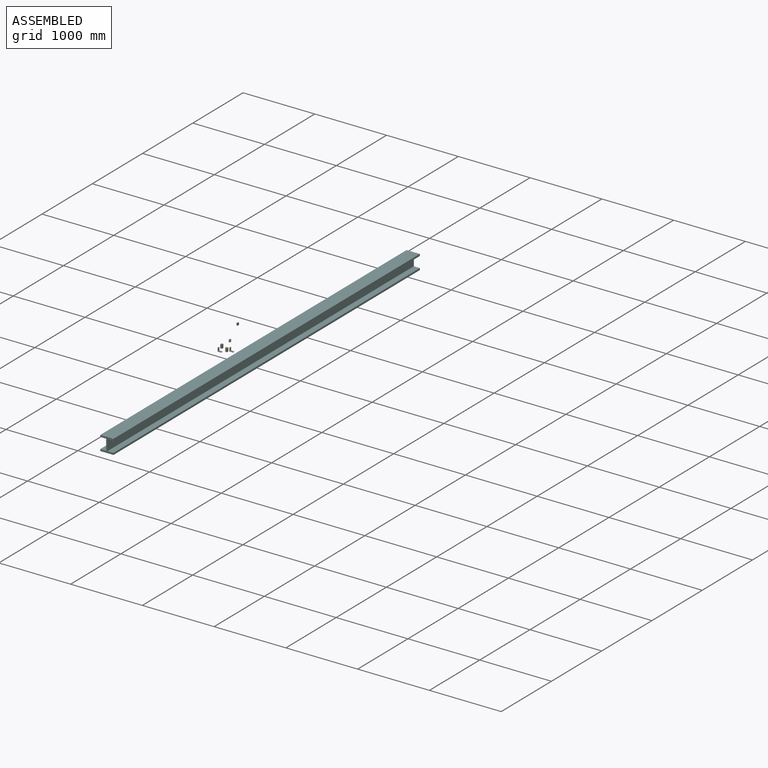
[diagram: assembled view]
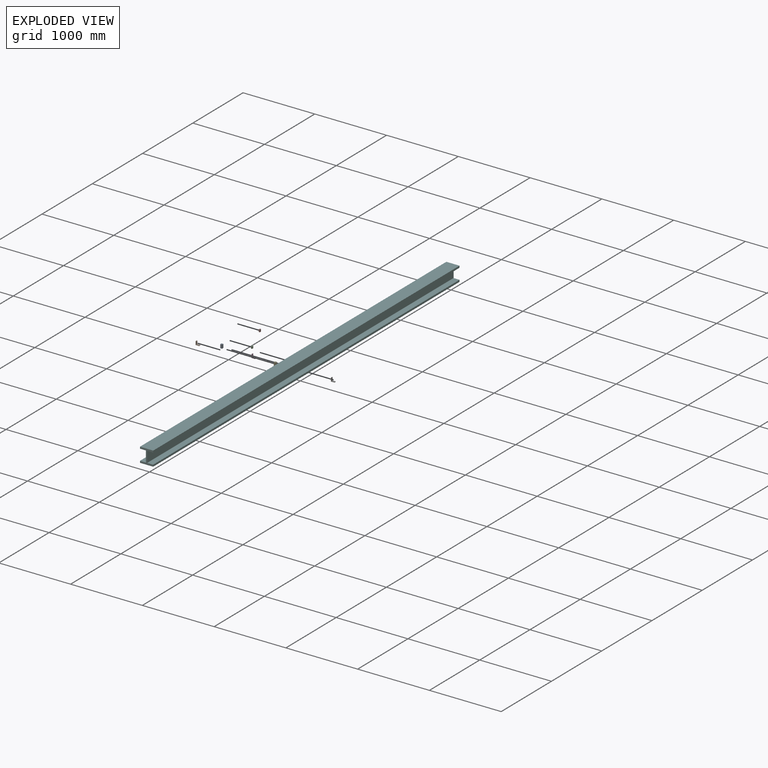
[diagram: exploded view]
GUIDED TOUR — MATED ASSEMBLY (Onshape document 58aba0348105ed0f8394dce6, AutoMate assembly 58aba0348105ed0f8394dce6_0b716180c5e61bfcd0391513_04956d65c0c06dcf2166eeb8_default)

This assembly has 8 components, labeled P0..P7 below (a component is one placed occurrence of a part; the same part can appear more than once), held together by 0 mates. A mate is a constraint between two components; its type names the relative motion it leaves free:
Axis/direction vectors are unit vectors and 'through' points are millimeter coordinates, both in the assembly's world frame.

MATES

ASSEMBLY ORDER
  1. P6 — the base component [order verified]
  2. P3 [order verified]
  3. P7 [order verified]
  4. P4 [order verified]
  5. P0 [order verified]
  6. P1 [order verified]
  7. P5 [order verified]
  8. P2 [order verified]
Order-tag legend:
  [order verified] — this step's position reverses a verified removal order: the component was checked to insert without passing through the ones already placed.

Of the 8 components, 8 carry the full construction recipe — the FeatureScript program that regenerates the part's solid from scratch; the rest are supplied as boundary geometry only.
Each toured component is shown spotlighted twice — in the assembled view, then in the exploded view, where a leader line traces a displaced component back to its assembled socket (saturated green if recipe-attached, orange if geometry-only; every other component desaturated gray) — followed by its recipe or geometry summary and the mates that hold it.
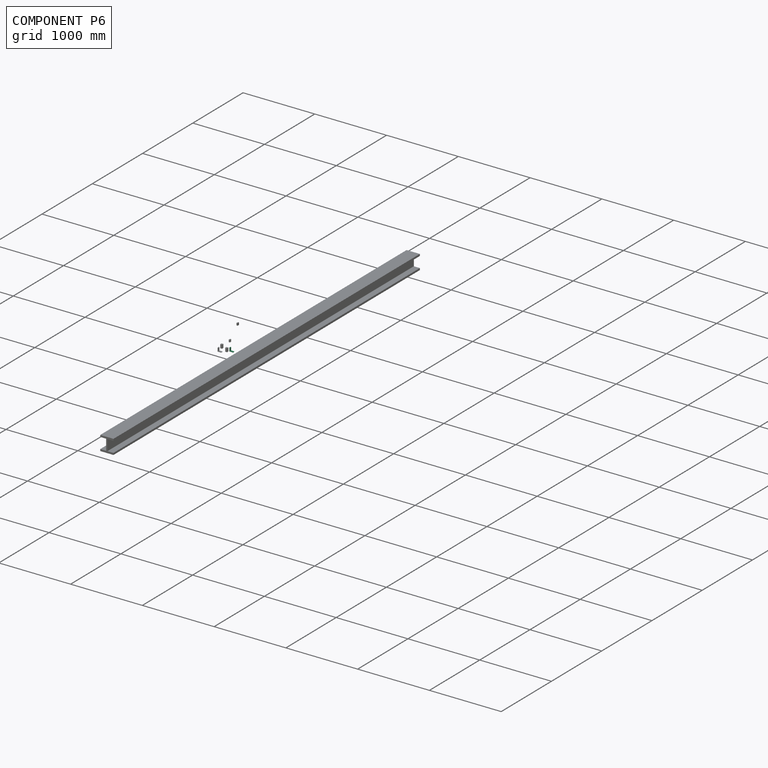
[diagram: component P6 — assembled]
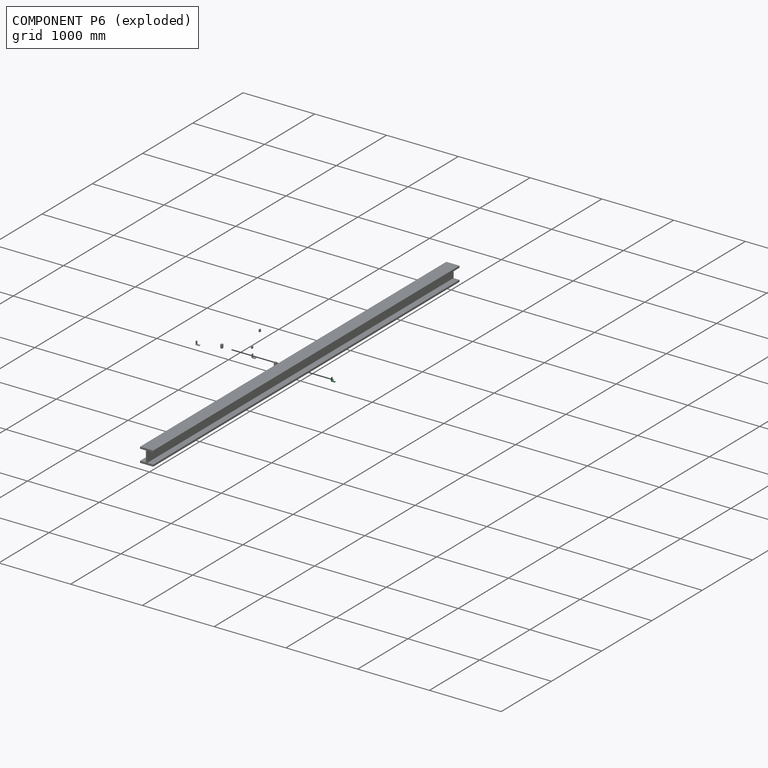
[diagram: component P6 — exploded]
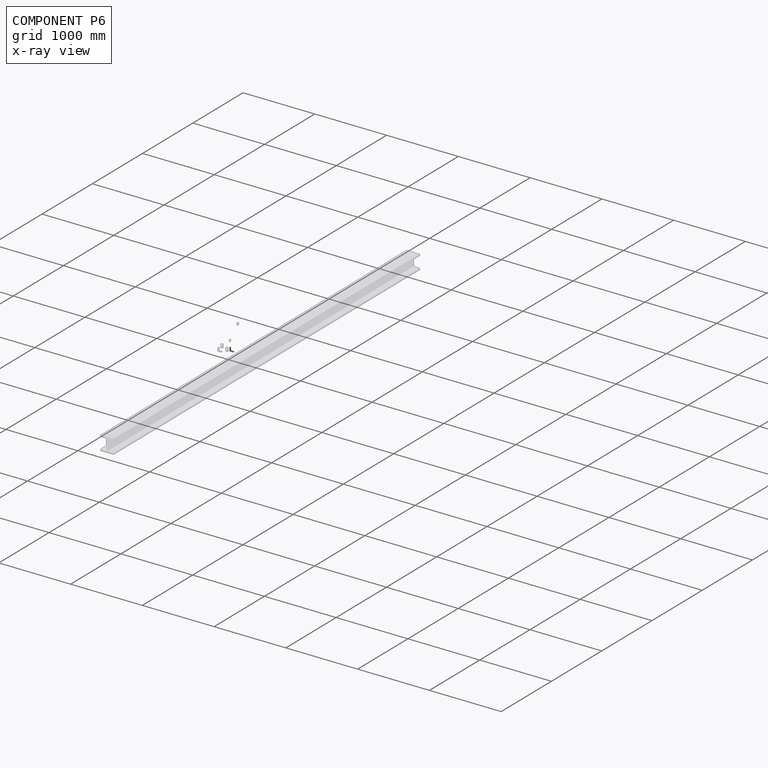
[diagram: component P6 — x-ray view]
COMPONENT P6 — same part as P1 (CADFS 00549155); its construction recipe is shown at P1.
Held by: no mates (free).
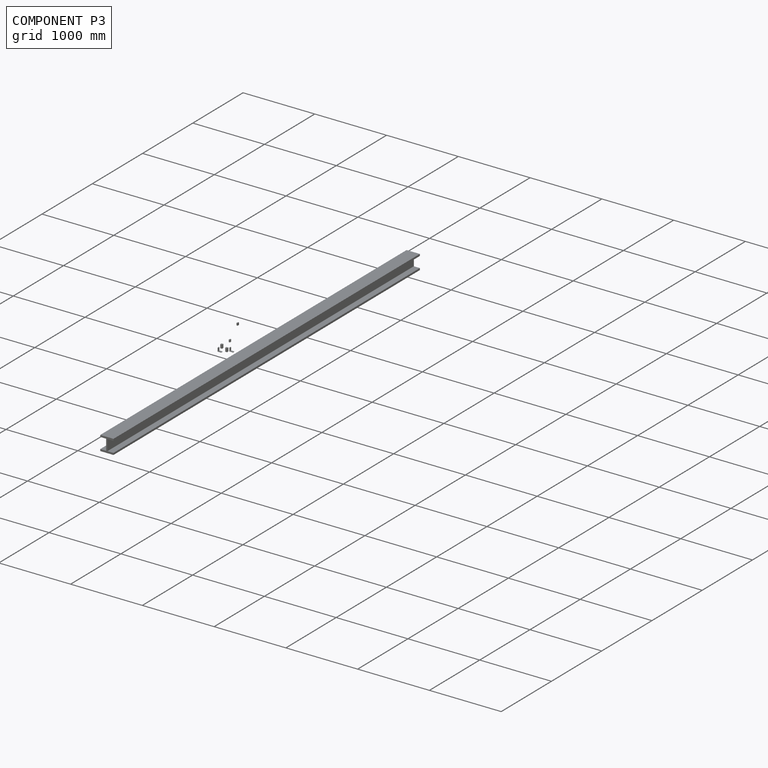
[diagram: component P3 — assembled]
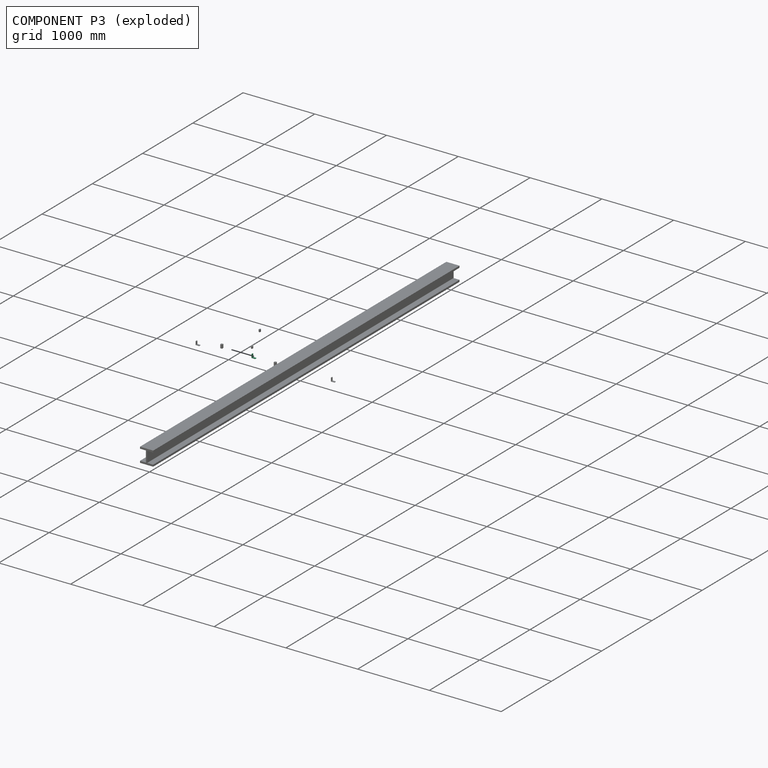
[diagram: component P3 — exploded]
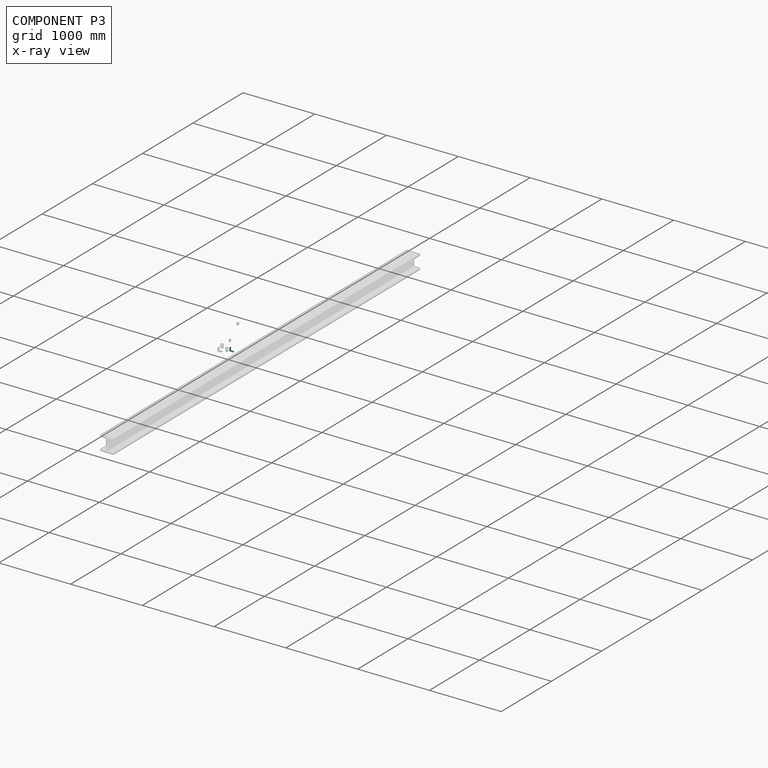
[diagram: component P3 — x-ray view]
COMPONENT P3 — same part as P1 (CADFS 00549155); its construction recipe is shown at P1.
Held by: no mates (free).
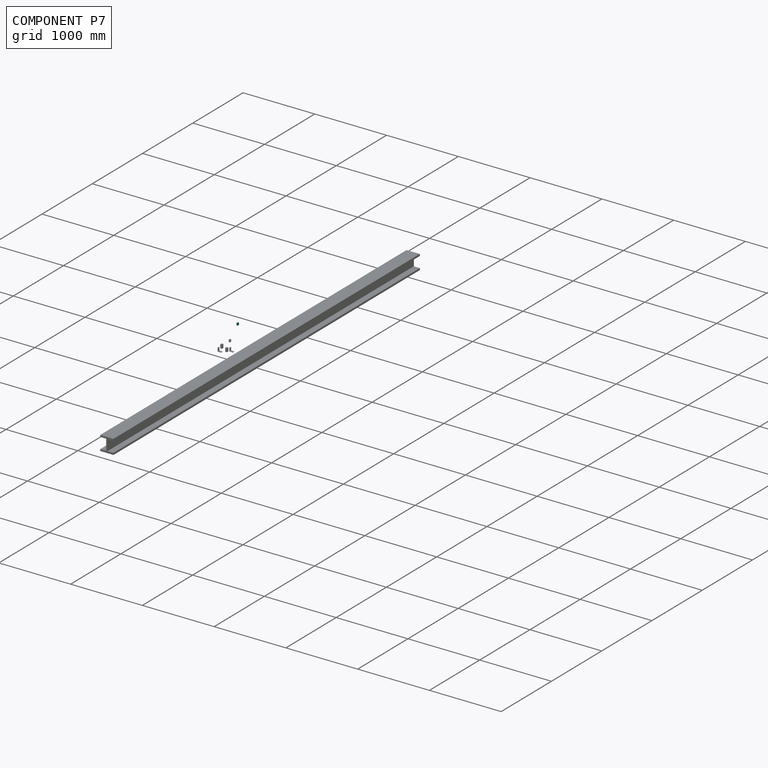
[diagram: component P7 — assembled]
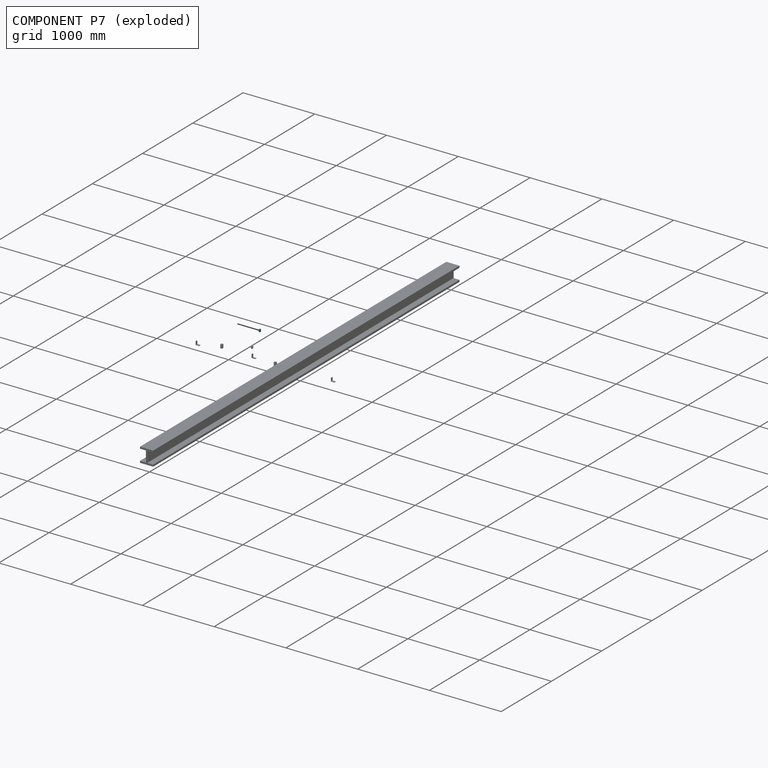
[diagram: component P7 — exploded]
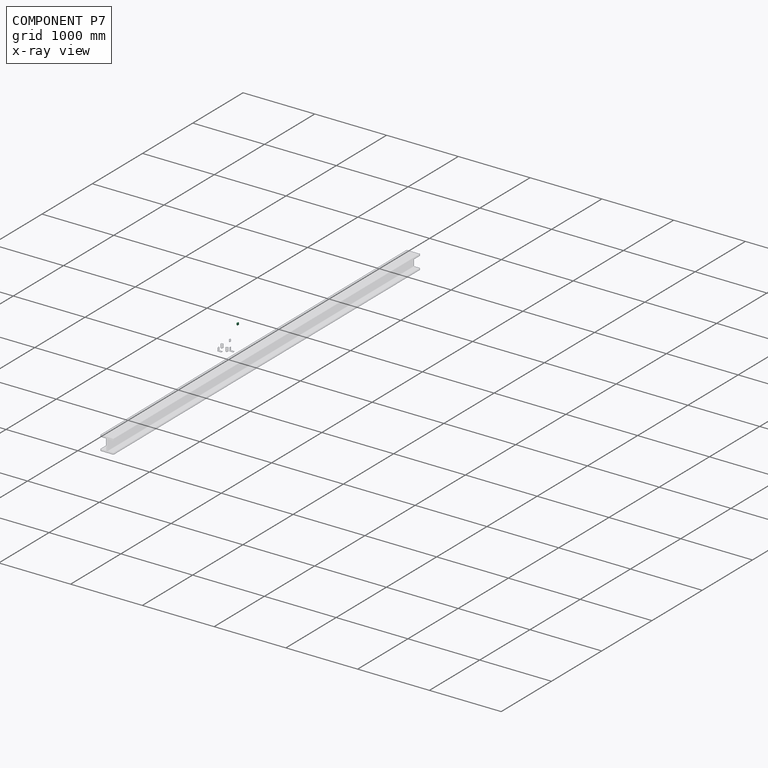
[diagram: component P7 — x-ray view]
COMPONENT P7 — same part as P2 (CADFS 00549150); its construction recipe is shown at P2.
Held by: no mates (free).
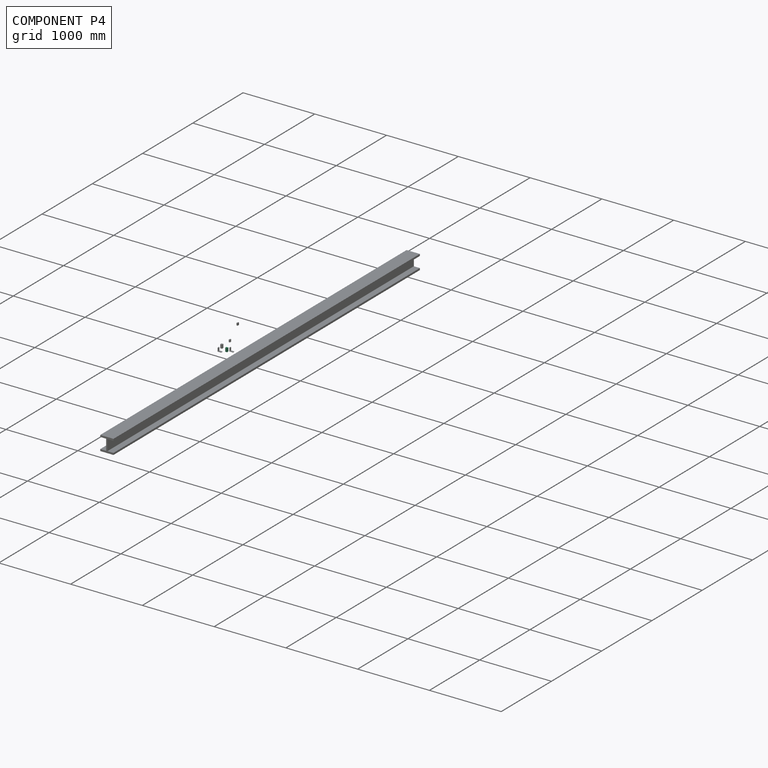
[diagram: component P4 — assembled]
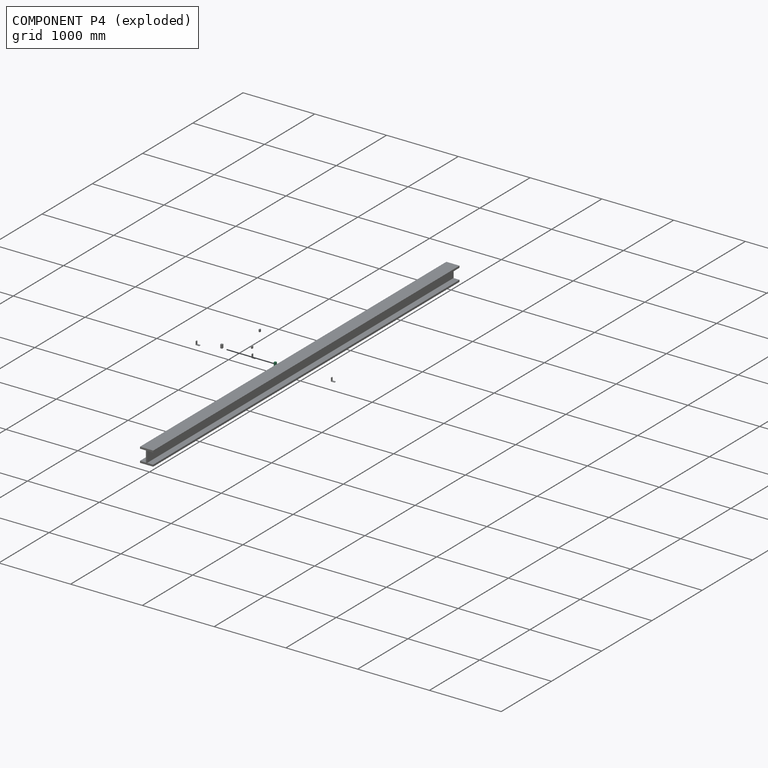
[diagram: component P4 — exploded]
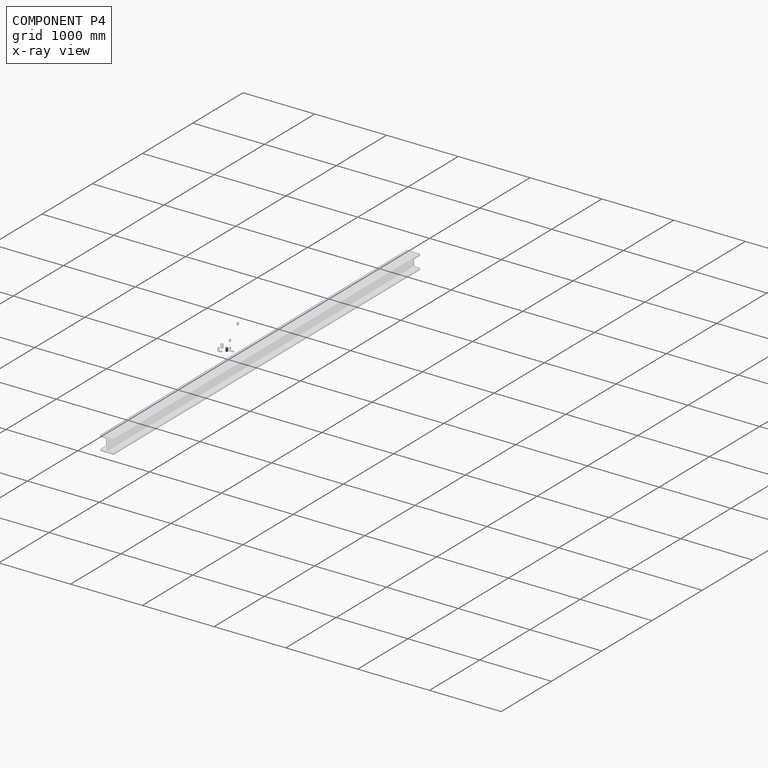
[diagram: component P4 — x-ray view]
COMPONENT P4 — same part as P0 (CADFS 00549154); its construction recipe is shown at P0.
Held by: no mates (free).
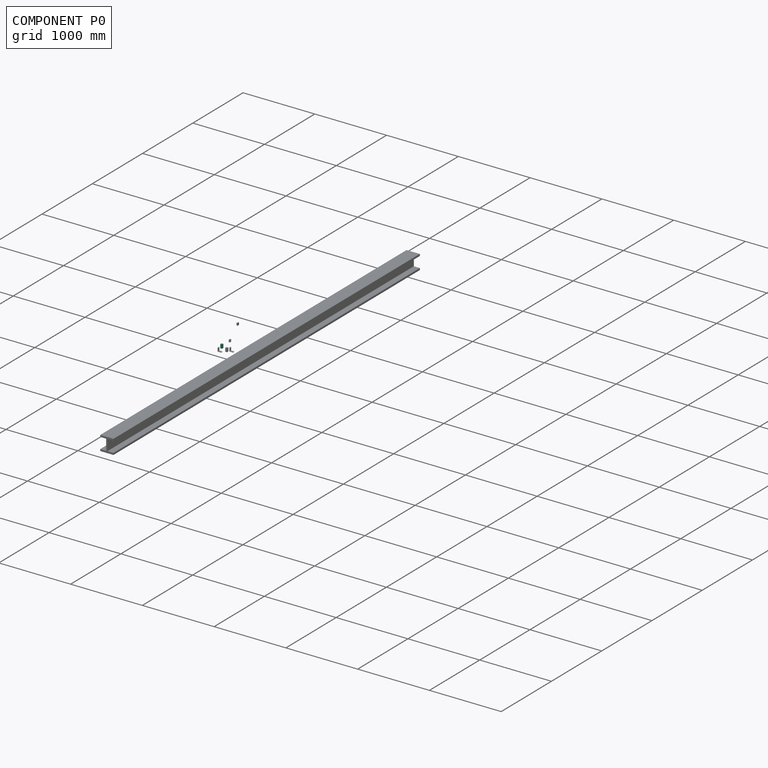
[diagram: component P0 — assembled]
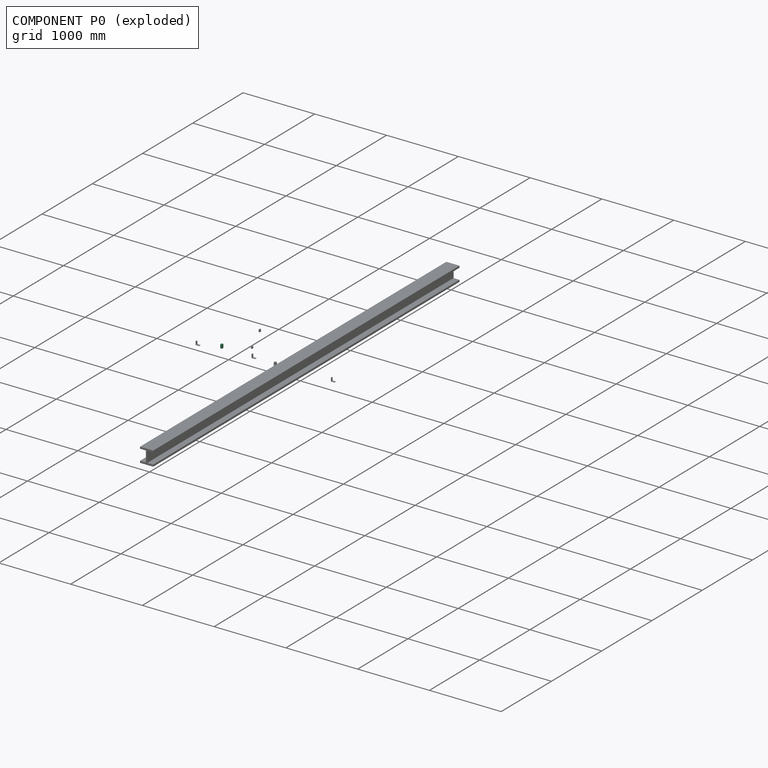
[diagram: component P0 — exploded]
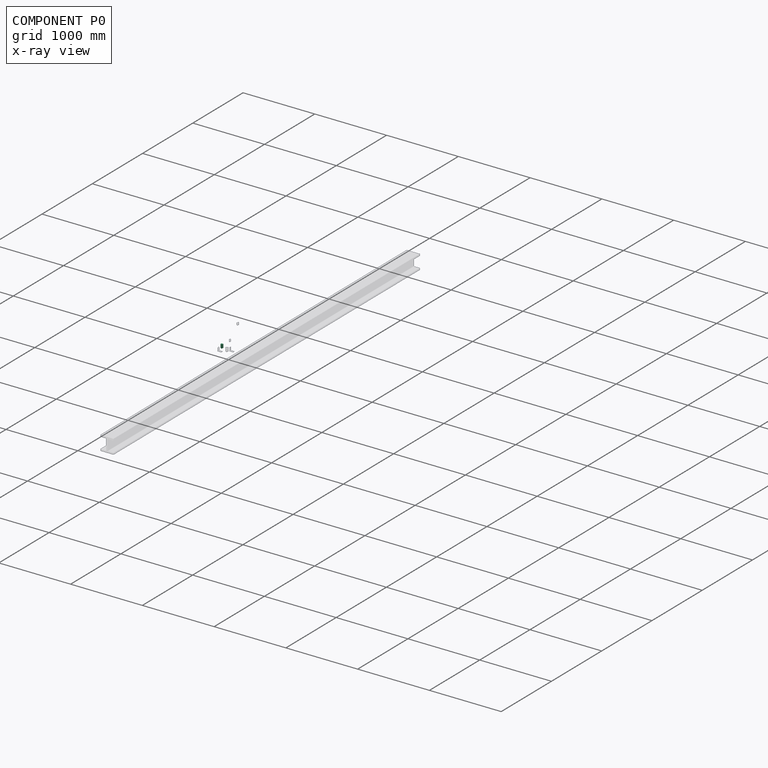
[diagram: component P0 — x-ray view]
COMPONENT P0 — recipe-attached (CADFS 00549154, mesh-verified: the recipe's output STEP matches this component's geometry to below the mesh-comparison resolution (tessellation chordal tolerance ~0.0933 mm)).
Held by: no mates (free).
Construction recipe (FeatureScript — the CAD program that rebuilds this solid; sketch coordinates are in the units given by the * unit suffixes, e.g. mm):

FeatureScript 1511;
import(path : "onshape/std/geometry.fs", version : "1511.0");
import(path : "onshape/std/common.fs", version : "1511.0");
const mm = millimeter;
const VERTEX = EntityType.VERTEX;
const EDGE = EntityType.EDGE;
const FACE = EntityType.FACE;
const BODY = EntityType.BODY;
function v(x, y){return vector(x, y);}
function OD(order){return orderDisambiguation(order);}
function OSD(set){return originalSetDisambiguation(set);}
function TD(topology){return topologyDisambiguation(topology);}
function TDD(query){return trueDependencyDisambiguation(query);}
function sQuery(a, b, c) {return sketchEntityQuery(a, b, c);}

annotation { "Feature Type Name" : "Feature", "Feature Type Description" : "" }
export const myFeature = defineFeature(function(context is Context, id is Id, definition is map)
    precondition{}
    {
        {
            var Q0;
            Q0=qCreatedBy(makeId("Front.planeOp"),FACE);
            var sketch = newSketch(context, id + "F0", { "sketchPlane" : qUnion([Q0])});
            skLineSegment(sketch, "E0", {"start": v(0, 0) * mm, "end": v(0, 50.8) * mm});
            skLineSegment(sketch, "E1", {"start": v(0, 50.8) * mm, "end": v(25.4, 50.8) * mm});
            skLineSegment(sketch, "E2", {"start": v(25.4, 50.8) * mm, "end": v(25.4, 0) * mm});
            skLineSegment(sketch, "E3", {"start": v(25.4, 0) * mm, "end": v(0, 0) * mm});
            skSolve(sketch);
        }
        {
            var Q0;
            Q0=makeQuery(id+"F0.imprint","IMPRINT",FACE,{"disambiguationData":[TD([[makeQuery(id+"F0.imprint","IMPRINT",EDGE,{"derivedFrom":sQuery(id+"F0.wireOp",EDGE,"E0")}),-1.0]])]});
            extrude(context, id + "F1", {"entities" : qUnion([Q0]), "depth" : 25.4 * mm});
        }
    });
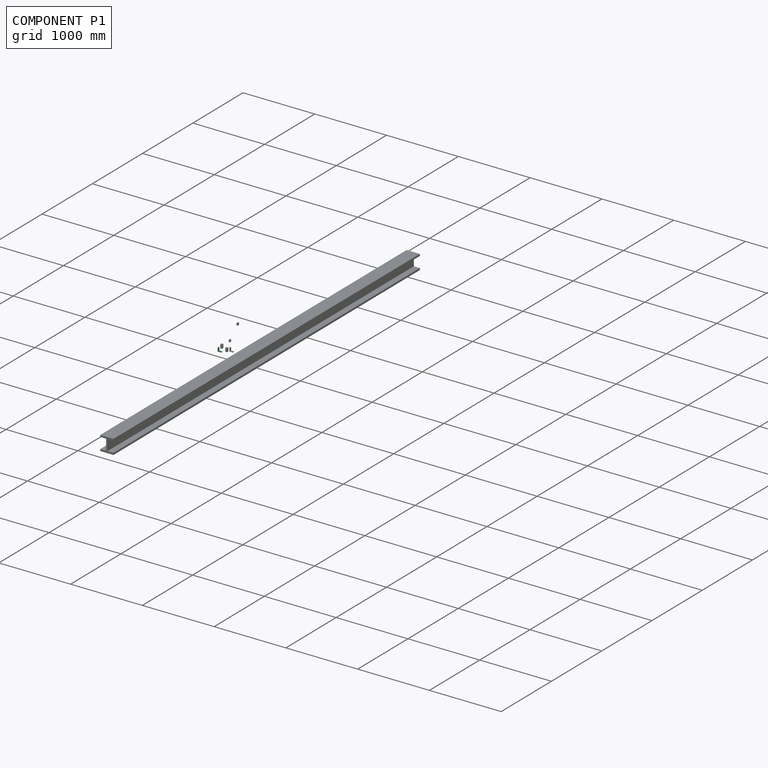
[diagram: component P1 — assembled]
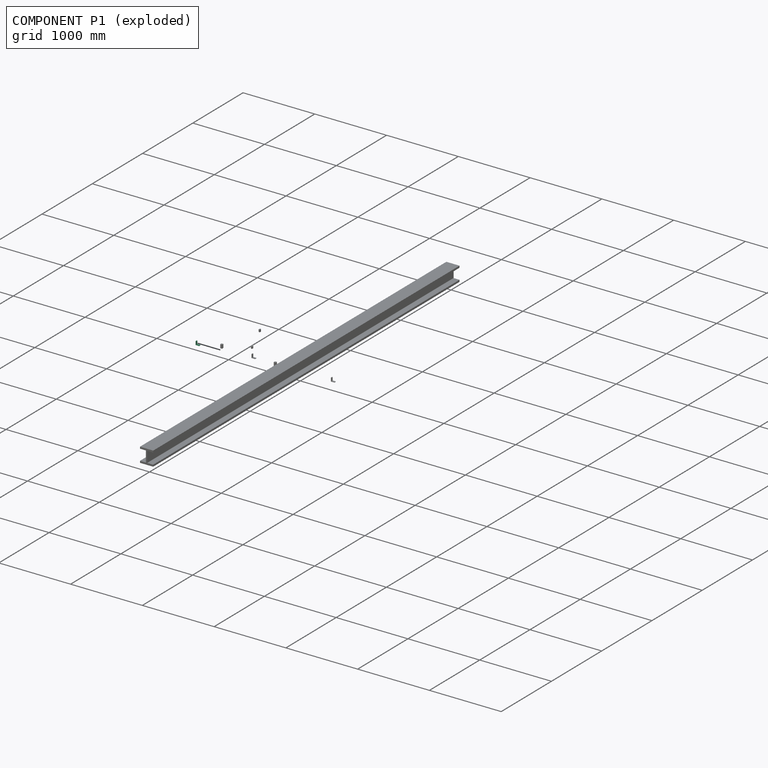
[diagram: component P1 — exploded]
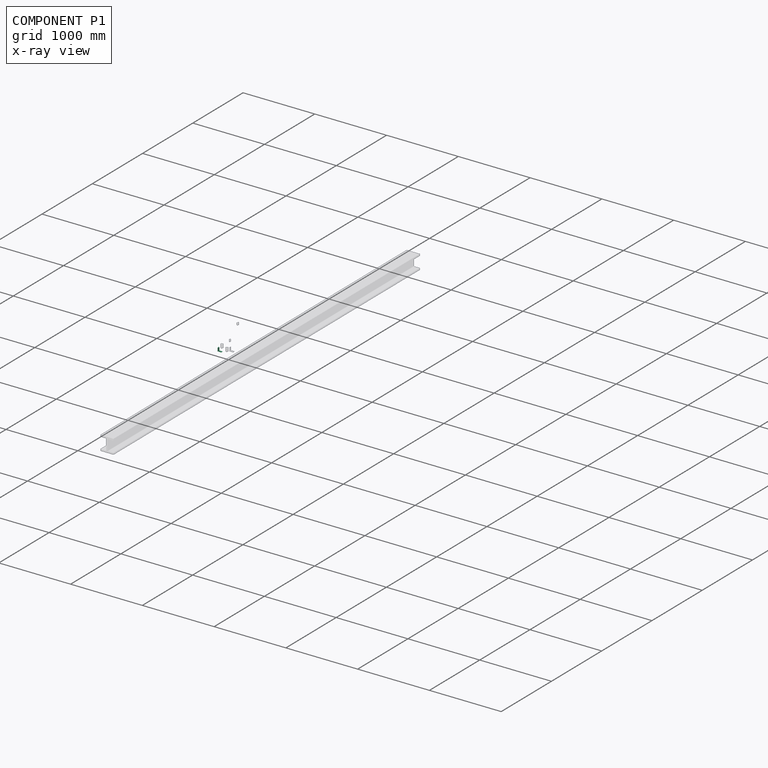
[diagram: component P1 — x-ray view]
COMPONENT P1 — recipe-attached (CADFS 00549155, mesh-verified: the recipe's output STEP matches this component's geometry to below the mesh-comparison resolution (tessellation chordal tolerance ~0.114 mm)).
Held by: no mates (free).
Construction recipe (FeatureScript — the CAD program that rebuilds this solid; sketch coordinates are in the units given by the * unit suffixes, e.g. mm):

FeatureScript 1511;
import(path : "onshape/std/geometry.fs", version : "1511.0");
import(path : "onshape/std/common.fs", version : "1511.0");
const mm = millimeter;
const VERTEX = EntityType.VERTEX;
const EDGE = EntityType.EDGE;
const FACE = EntityType.FACE;
const BODY = EntityType.BODY;
function v(x, y){return vector(x, y);}
function OD(order){return orderDisambiguation(order);}
function OSD(set){return originalSetDisambiguation(set);}
function TD(topology){return topologyDisambiguation(topology);}
function TDD(query){return trueDependencyDisambiguation(query);}
function sQuery(a, b, c) {return sketchEntityQuery(a, b, c);}

annotation { "Feature Type Name" : "Feature", "Feature Type Description" : "" }
export const myFeature = defineFeature(function(context is Context, id is Id, definition is map)
    precondition{}
    {
        {
            var Q0;
            Q0=qCreatedBy(makeId("Front.planeOp"),FACE);
            var sketch = newSketch(context, id + "F0", { "sketchPlane" : qUnion([Q0])});
            skLineSegment(sketch, "E0", {"start": v(0, 0) * mm, "end": v(0, 50.8) * mm});
            skLineSegment(sketch, "E1", {"start": v(0, 0) * mm, "end": v(50.8, 0) * mm});
            skLineSegment(sketch, "E2", {"start": v(0, 50.8) * mm, "end": v(0, 50.8) * mm});
            skLineSegment(sketch, "E3", {"start": v(50.8, 0) * mm, "end": v(50.8, 0) * mm});
            skLineSegment(sketch, "E4", {"start": v(44.45, 6.35) * mm, "end": v(6.35, 6.35) * mm});
            skLineSegment(sketch, "E5", {"start": v(6.35, 44.45) * mm, "end": v(6.35, 6.35) * mm});
            skPoint(sketch, "E6.visualSharp", {"position": v(6.35, 50.8) * mm});
            skArc(sketch, "E6.filletArc", {"start": v(6.35, 44.45) * mm, "mid": v(4.5, 48.94) * mm, "end": v(0, 50.8) * mm});
            skPoint(sketch, "E7.visualSharp", {"position": v(50.8, 6.35) * mm});
            skArc(sketch, "E7.filletArc", {"start": v(50.8, 0) * mm, "mid": v(48.94, 4.5) * mm, "end": v(44.45, 6.35) * mm});
            skSolve(sketch);
        }
        {
            var Q0;
            Q0=makeQuery(id+"F0.imprint","IMPRINT",FACE,{"disambiguationData":[TD([[makeQuery(id+"F0.imprint","IMPRINT",EDGE,{"derivedFrom":sQuery(id+"F0.wireOp",EDGE,"E0")}),-1.0]])]});
            extrude(context, id + "F1", {"entities" : qUnion([Q0]), "depth" : 25.4 * mm});
        }
    });
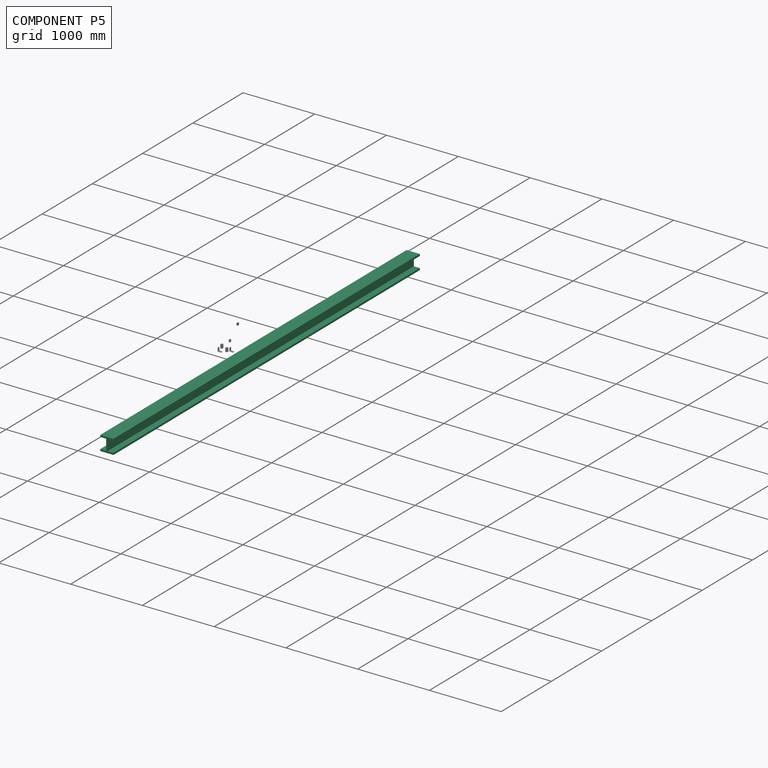
[diagram: component P5 — assembled]
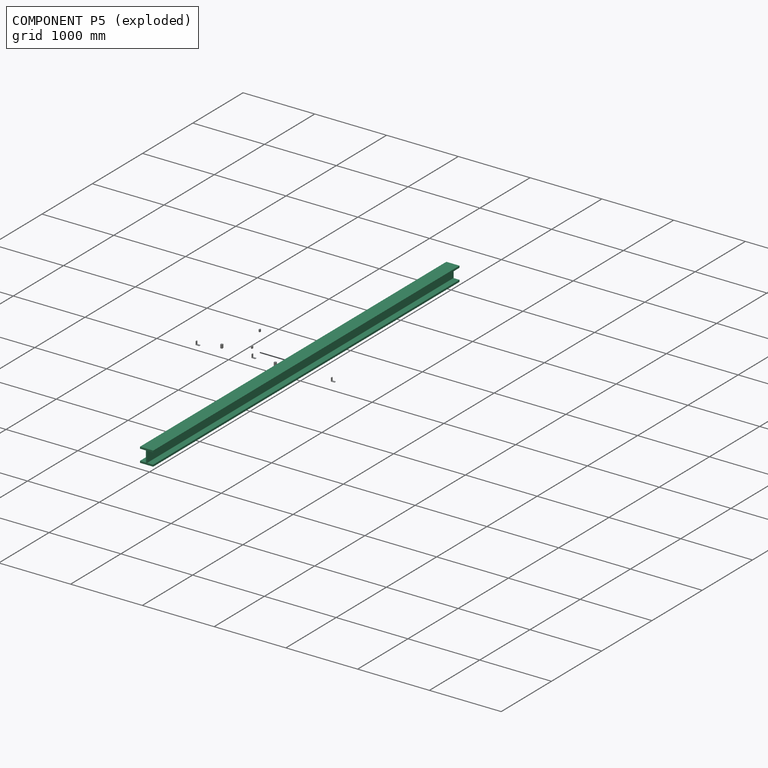
[diagram: component P5 — exploded]
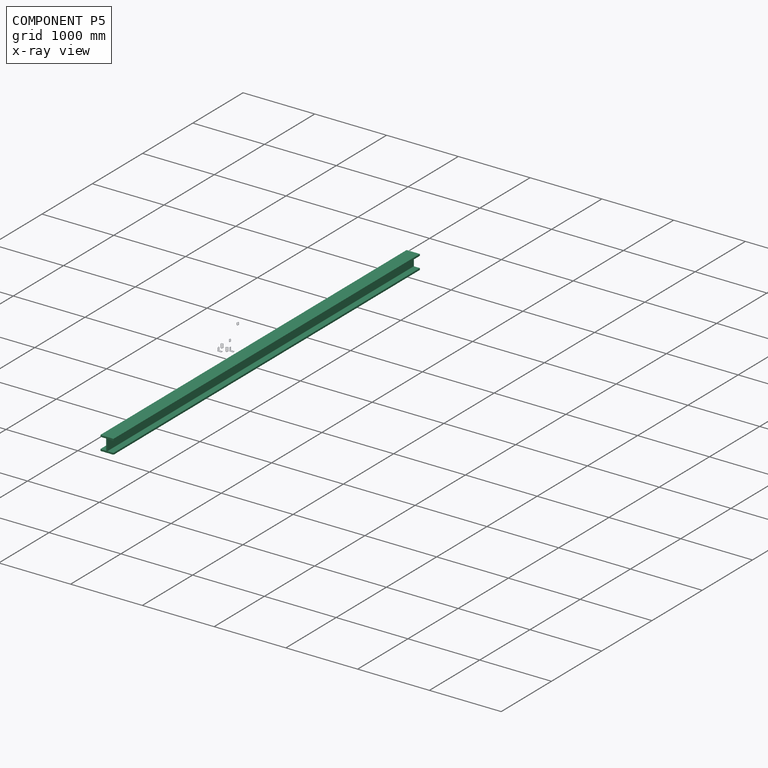
[diagram: component P5 — x-ray view]
COMPONENT P5 — recipe-attached (CADFS 00549161, mesh-verified: the recipe's output STEP matches this component's geometry to below the mesh-comparison resolution (tessellation chordal tolerance ~9.15 mm)).
Held by: no mates (free).
Construction recipe (FeatureScript — the CAD program that rebuilds this solid; sketch coordinates are in the units given by the * unit suffixes, e.g. mm):

FeatureScript 1511;
import(path : "onshape/std/geometry.fs", version : "1511.0");
import(path : "onshape/std/common.fs", version : "1511.0");
const mm = millimeter;
const VERTEX = EntityType.VERTEX;
const EDGE = EntityType.EDGE;
const FACE = EntityType.FACE;
const BODY = EntityType.BODY;
function v(x, y){return vector(x, y);}
function OD(order){return orderDisambiguation(order);}
function OSD(set){return originalSetDisambiguation(set);}
function TD(topology){return topologyDisambiguation(topology);}
function TDD(query){return trueDependencyDisambiguation(query);}
function sQuery(a, b, c) {return sketchEntityQuery(a, b, c);}

annotation { "Feature Type Name" : "Feature", "Feature Type Description" : "" }
export const myFeature = defineFeature(function(context is Context, id is Id, definition is map)
    precondition{}
    {
        {
            var Q0;
            Q0=qCreatedBy(makeId("Front.planeOp"),FACE);
            var sketch = newSketch(context, id + "F0", { "sketchPlane" : qUnion([Q0])});
            skLineSegment(sketch, "E0", {"start": v(92.08, -76.2) * mm, "end": v(12.07, -76.2) * mm});
            skLineSegment(sketch, "E1", {"start": v(9.52, -73.66) * mm, "end": v(9.52, 73.66) * mm});
            skLineSegment(sketch, "E2", {"start": v(12.07, 76.2) * mm, "end": v(92.08, 76.2) * mm});
            skLineSegment(sketch, "E3", {"start": v(-92.08, 76.2) * mm, "end": v(-12.07, 76.2) * mm});
            skLineSegment(sketch, "E4", {"start": v(-9.53, 73.66) * mm, "end": v(-9.53, -73.66) * mm});
            skLineSegment(sketch, "E5", {"start": v(-12.06, -76.2) * mm, "end": v(-92.08, -76.2) * mm});
            skLineSegment(sketch, "E6", {"start": v(0, 0) * mm, "end": v(-9.52, 0) * mm, "construction": true});
            skLineSegment(sketch, "E7", {"start": v(0, 0) * mm, "end": v(9.52, 0) * mm, "construction": true});
            skLineSegment(sketch, "E8", {"start": v(0, 0) * mm, "end": v(0, 101.6) * mm, "construction": true});
            skLineSegment(sketch, "E9", {"start": v(0, 0) * mm, "end": v(0, -101.6) * mm, "construction": true});
            skPoint(sketch, "E10.visualSharp", {"position": v(-9.53, 76.2) * mm});
            skArc(sketch, "E10.filletArc", {"start": v(-9.52, 73.66) * mm, "mid": v(-10.27, 75.46) * mm, "end": v(-12.07, 76.2) * mm});
            skPoint(sketch, "E11.visualSharp", {"position": v(9.53, 76.2) * mm});
            skArc(sketch, "E11.filletArc", {"start": v(12.07, 76.2) * mm, "mid": v(10.27, 75.46) * mm, "end": v(9.52, 73.66) * mm});
            skPoint(sketch, "E12.visualSharp", {"position": v(9.53, -76.2) * mm});
            skArc(sketch, "E12.filletArc", {"start": v(9.52, -73.66) * mm, "mid": v(10.27, -75.46) * mm, "end": v(12.07, -76.2) * mm});
            skPoint(sketch, "E13.visualSharp", {"position": v(-9.53, -76.2) * mm});
            skArc(sketch, "E13.filletArc", {"start": v(-12.06, -76.2) * mm, "mid": v(-10.27, -75.46) * mm, "end": v(-9.52, -73.66) * mm});
            skPoint(sketch, "E14.visualSharp", {"position": v(-92.08, 101.6) * mm});
            skPoint(sketch, "E15.visualSharp", {"position": v(92.08, 101.6) * mm});
            skPoint(sketch, "E16.visualSharp", {"position": v(92.08, 76.2) * mm});
            skPoint(sketch, "E17.visualSharp", {"position": v(92.08, -101.6) * mm});
            skPoint(sketch, "E18.visualSharp", {"position": v(-92.08, -76.2) * mm});
            skPoint(sketch, "E19.visualSharp", {"position": v(-92.08, -101.6) * mm});
            skLineSegment(sketch, "E20", {"start": v(92.08, -76.2) * mm, "end": v(92.08, -101.6) * mm});
            skLineSegment(sketch, "E21", {"start": v(-92.08, -76.2) * mm, "end": v(-92.08, -101.6) * mm});
            skLineSegment(sketch, "E22", {"start": v(-92.08, 101.6) * mm, "end": v(-92.08, 76.2) * mm});
            skLineSegment(sketch, "E23", {"start": v(92.08, 101.6) * mm, "end": v(92.08, 76.2) * mm});
            skLineSegment(sketch, "E24", {"start": v(-92.08, 101.6) * mm, "end": v(92.08, 101.6) * mm});
            skLineSegment(sketch, "E25", {"start": v(-92.07, -101.6) * mm, "end": v(92.08, -101.6) * mm});
            skSolve(sketch);
        }
        {
            var Q0;
            Q0=makeQuery(id+"F0.imprint","IMPRINT",FACE,{"disambiguationData":[TD([[makeQuery(id+"F0.imprint","IMPRINT",EDGE,{"derivedFrom":sQuery(id+"F0.wireOp",EDGE,"E0")}),1.0]])]});
            extrude(context, id + "F1", {"entities" : qUnion([Q0]), "endBound" : BoundingType.SYMMETRIC, "depth" : 6096 * mm});
        }
    });
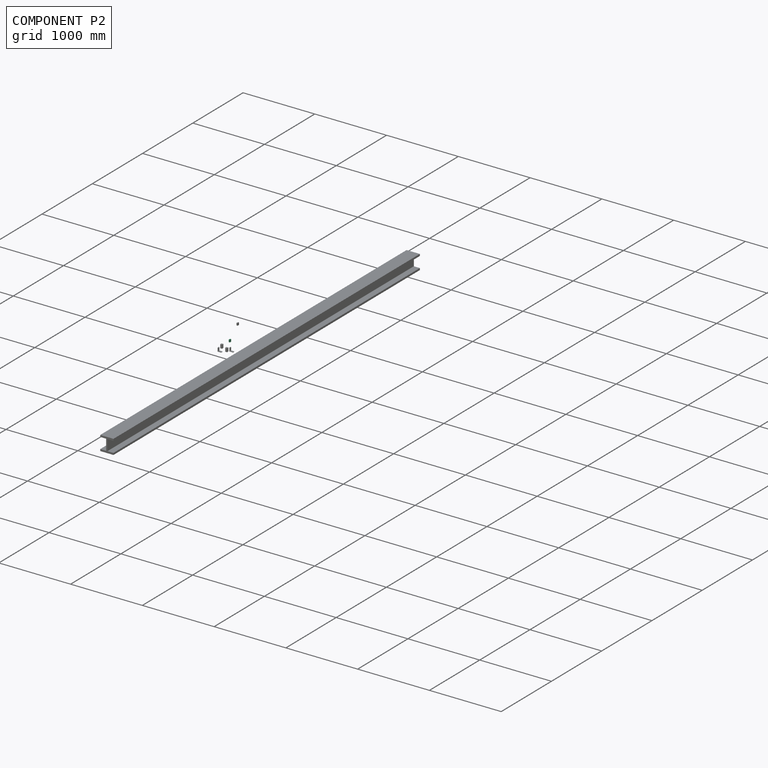
[diagram: component P2 — assembled]
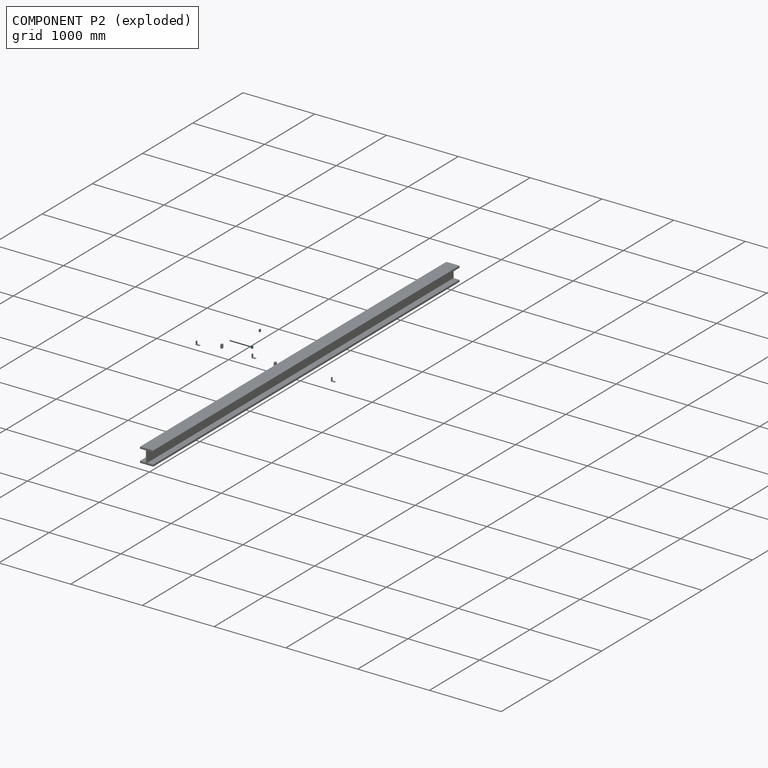
[diagram: component P2 — exploded]
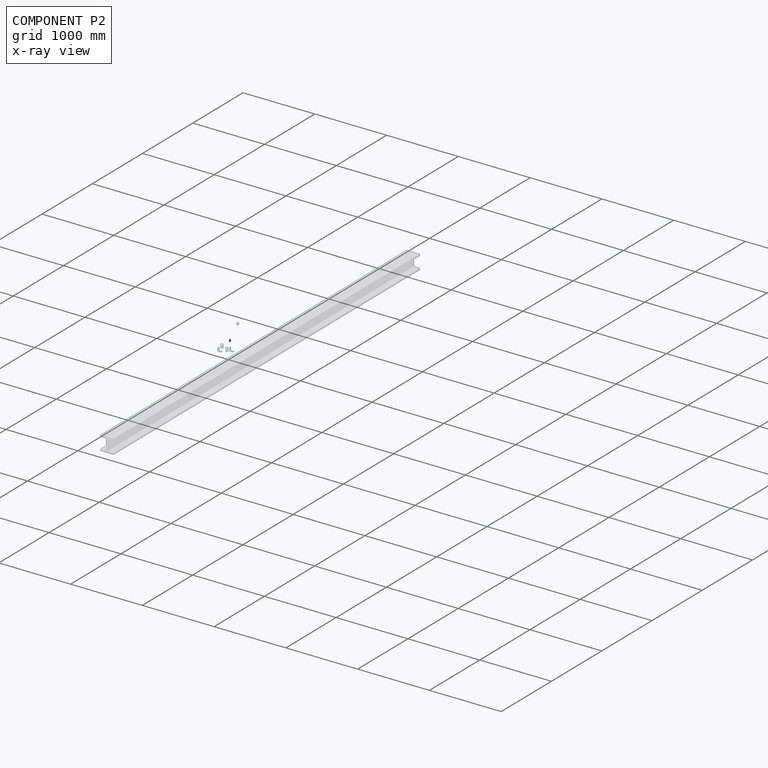
[diagram: component P2 — x-ray view]
COMPONENT P2 — recipe-attached (CADFS 00549150, mesh-verified: the recipe's output STEP matches this component's geometry to below the mesh-comparison resolution (tessellation chordal tolerance ~0.0655 mm)).
Held by: no mates (free).
Construction recipe (FeatureScript — the CAD program that rebuilds this solid; sketch coordinates are in the units given by the * unit suffixes, e.g. mm):

FeatureScript 1511;
import(path : "onshape/std/geometry.fs", version : "1511.0");
import(path : "onshape/std/common.fs", version : "1511.0");
const mm = millimeter;
const VERTEX = EntityType.VERTEX;
const EDGE = EntityType.EDGE;
const FACE = EntityType.FACE;
const BODY = EntityType.BODY;
function v(x, y){return vector(x, y);}
function OD(order){return orderDisambiguation(order);}
function OSD(set){return originalSetDisambiguation(set);}
function TD(topology){return topologyDisambiguation(topology);}
function TDD(query){return trueDependencyDisambiguation(query);}
function sQuery(a, b, c) {return sketchEntityQuery(a, b, c);}

annotation { "Feature Type Name" : "Feature", "Feature Type Description" : "" }
export const myFeature = defineFeature(function(context is Context, id is Id, definition is map)
    precondition{}
    {
        {
            var Q0;
            Q0=qCreatedBy(makeId("Front.planeOp"),FACE);
            var sketch = newSketch(context, id + "F0", { "sketchPlane" : qUnion([Q0])});
            skLineSegment(sketch, "E0", {"start": v(0, 0) * mm, "end": v(15.88, 0) * mm});
            skLineSegment(sketch, "E1", {"start": v(0, 0) * mm, "end": v(0, -31.75) * mm});
            skLineSegment(sketch, "E2", {"start": v(0, -31.75) * mm, "end": v(15.88, -31.75) * mm});
            skLineSegment(sketch, "E3", {"start": v(15.88, -31.75) * mm, "end": v(15.88, 0) * mm});
            skSolve(sketch);
        }
        {
            var Q0;
            Q0=makeQuery(id+"F0.imprint","IMPRINT",FACE,{"disambiguationData":[TD([[makeQuery(id+"F0.imprint","IMPRINT",EDGE,{"derivedFrom":sQuery(id+"F0.wireOp",EDGE,"E0")}),-1.0]])]});
            var Q1;
            Q1=makeQuery(id+"F0.imprint","IMPRINT",FACE,{"disambiguationData":[TD([[makeQuery(id+"F0.imprint","IMPRINT",EDGE,{"derivedFrom":sQuery(id+"F0.wireOp",EDGE,"E0")}),-1.0]])]});
            var Q2;
            Q2=makeQuery(id+"F0.imprint","IMPRINT",FACE,{"disambiguationData":[TD([[makeQuery(id+"F0.imprint","IMPRINT",EDGE,{"derivedFrom":sQuery(id+"F0.wireOp",EDGE,"sE00Gzr5-o4TN-UCdV-R85f-zcs0Y7AX2MqQ")}),1.0]])]});
            extrude(context, id + "F1", {"entities" : qUnion([Q0, Q1, Q2]), "depth" : 25.4 * mm, "offsetDistance" : 25.4 * mm});
        }
    });
PROVENANCE & LICENSES
Assembly (occurrences, transforms, mates, per-part STEP geometry): AutoMate dataset, Zenodo record 7776208, CC0.
Construction recipes: CADFS (HuggingFace VladPyatov/CADFS, CC-BY-4.0, layered over the ABC dataset), FeatureScript reconstruction programs keyed by ABC model id.
Join: ABC meta listings map ABC model id -> Onshape documentId; within a shared document, parts are matched by geometric signature (bounding-box dims + volume at 0.1% relative tolerance, exact B-rep face/solid counts).
Verification: 8 of this assembly's 8 components carry a recipe attachment, and every attachment is mesh-verified: the CADFS STEP and the AutoMate member STEP were compared as meshes in their shared local frame (symmetric sampled-point-to-mesh distance); worst across the 8 attachments: below the mesh-comparison resolution (tessellation chordal tolerance ~9.15 mm) on a 6102 mm part.
Renders: orthographic iso camera (az 35 / el 25); the floor grid conveys scale (grid pitch printed in each image; no ruler). In the exploded view each component is displaced by its stored offset vector: the offsets alone carry the explosion direction (mate normal/axis signs are not orientation cues and do not encode it), and separation distances are assigned per mate-chain, not proportionally to assembly-order depth.
